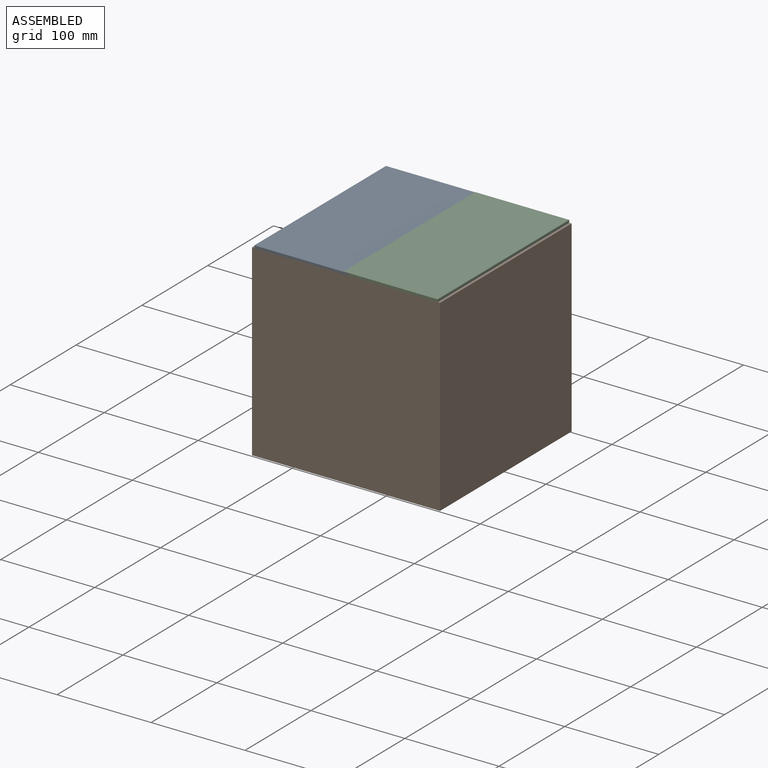
[diagram: assembled view]
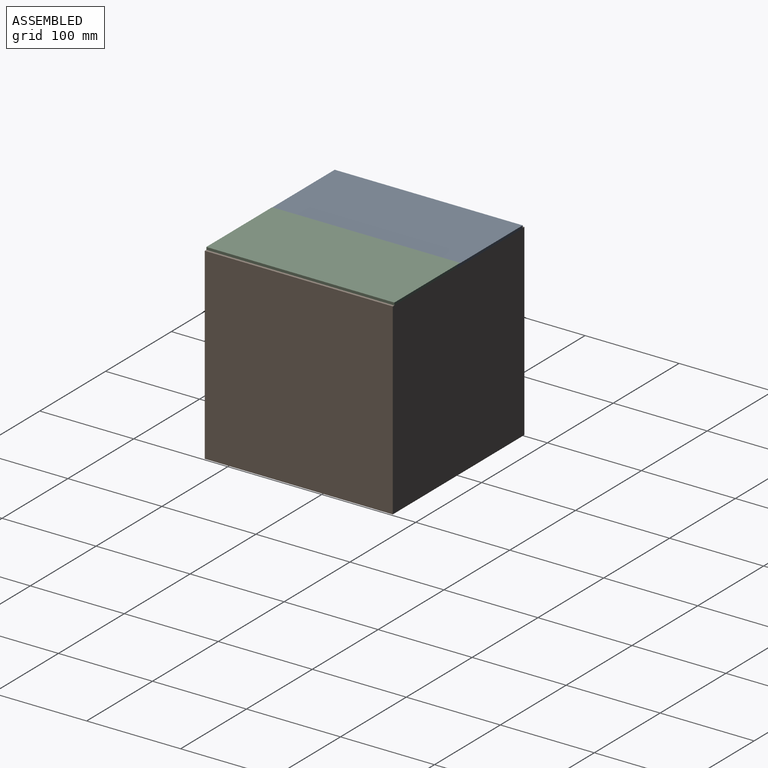
[diagram: assembled view, second angle]
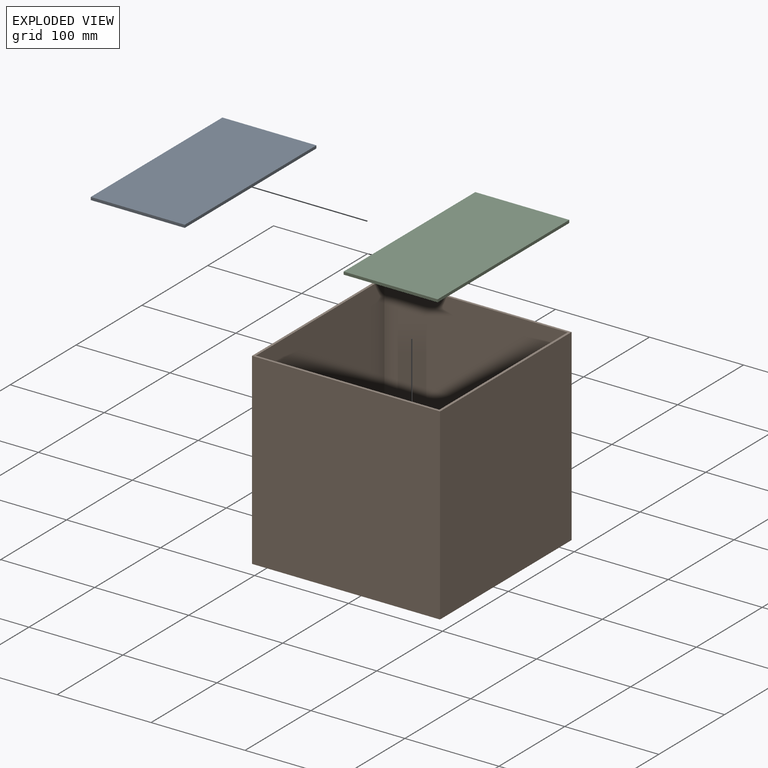
[diagram: exploded view]
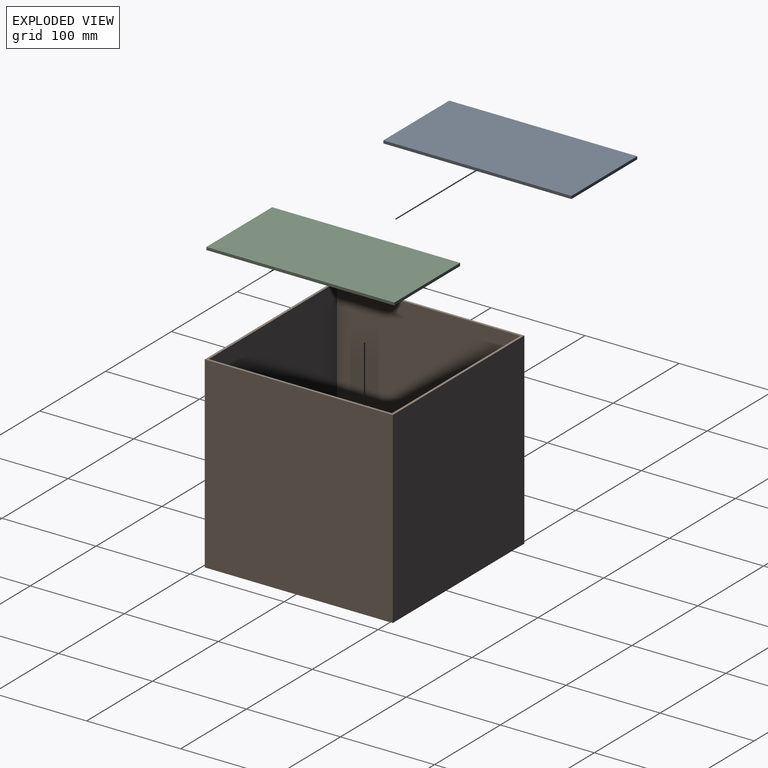
[diagram: exploded view, second angle]
ASSEMBLY  parts=3 mates=2
PART A: 6 faces, bbox 100x200x3 mm
  f0: plane 100x3mm, normal (0,1,0), area 300mm2, adj f1,f3,f4,f5
  f1: plane 200x3mm, normal (-1,0,0), area 600mm2, adj f0,f2,f4,f5
  f2: plane 100x3mm, normal (0,-1,0), area 300mm2, adj f1,f3,f4,f5
  f3: plane 200x3mm, normal (1,0,0), area 600mm2, adj f0,f2,f4,f5
  f4: plane 200x100mm, normal (0,0,1), area 20000mm2, adj f0,f1,f2,f3
  f5: plane 200x100mm, normal (0,0,-1), area 20000mm2, adj f0,f1,f2,f3
PART B: 11 faces, bbox 200x200x200 mm
  f0: plane 200x200mm, normal (0,0,1), area 1975mm2, adj f1,f2,f3,f4,f6,f7,f8,f9
  f1: plane 200x200mm, normal (-1,0,0), area 40000mm2, adj f0,f2,f4,f5
  f2: plane 200x200mm, normal (0,-1,0), area 40000mm2, adj f0,f1,f3,f5
  f3: plane 200x200mm, normal (1,0,0), area 40000mm2, adj f0,f2,f4,f5
  f4: plane 200x200mm, normal (0,1,0), area 40000mm2, adj f0,f1,f3,f5
  f5: plane 200x200mm, normal (0,0,-1), area 40000mm2, adj f1,f2,f3,f4
  f6: plane 197.5x195mm, normal (1,0,0), area 38512.5mm2, adj f0,f7,f9,f10
  f7: plane 197.5x195mm, normal (0,1,0), area 38512.5mm2, adj f0,f6,f8,f10
  f8: plane 197.5x195mm, normal (-1,0,0), area 38512.5mm2, adj f0,f7,f9,f10
  f9: plane 197.5x195mm, normal (0,-1,0), area 38512.5mm2, adj f0,f6,f8,f10
  f10: plane 195x195mm, normal (0,0,1), area 38025mm2, adj f6,f7,f8,f9
PART C: 6 faces, bbox 100x200x3 mm
  f0: plane 100x3mm, normal (0,1,0), area 300mm2, adj f1,f3,f4,f5
  f1: plane 200x3mm, normal (-1,0,0), area 600mm2, adj f0,f2,f4,f5
  f2: plane 100x3mm, normal (0,-1,0), area 300mm2, adj f1,f3,f4,f5
  f3: plane 200x3mm, normal (1,0,0), area 600mm2, adj f0,f2,f4,f5
  f4: plane 200x100mm, normal (0,0,1), area 20000mm2, adj f0,f1,f2,f3
  f5: plane 200x100mm, normal (0,0,-1), area 20000mm2, adj f0,f1,f2,f3
PLACE A t=(-152.8,-101.87,330.94)mm
PLACE B t=(-209.14,-90.82,131.44)mm
PLACE C t=(-70.73,-92.52,331.19)mm
MATE fastened A.f1 <-> B.f6  axis (-1,0,0) through (-306.64,-90.82,332.44)mm
MATE fastened C.f3 <-> B.f8  axis (1,0,0) through (-111.64,-90.82,332.69)mm
